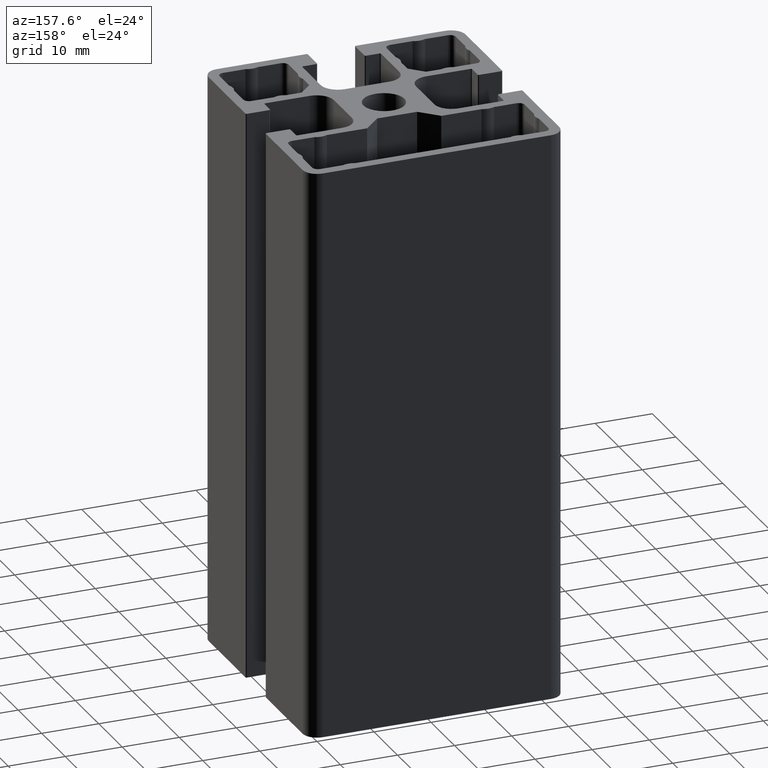
[diagram: clean part render]
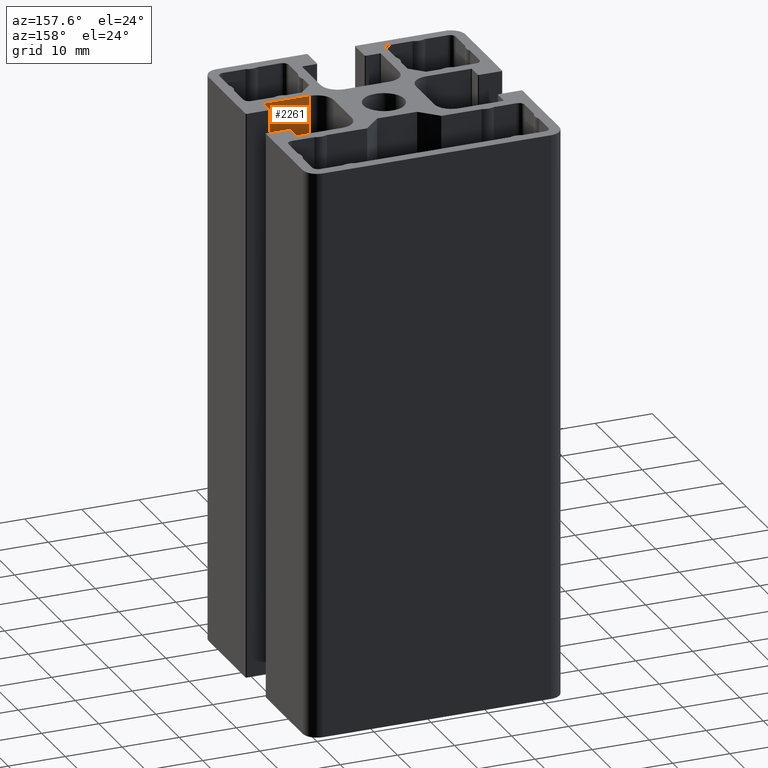
[diagram: same view with one face highlighted and labeled with its STEP entity id]
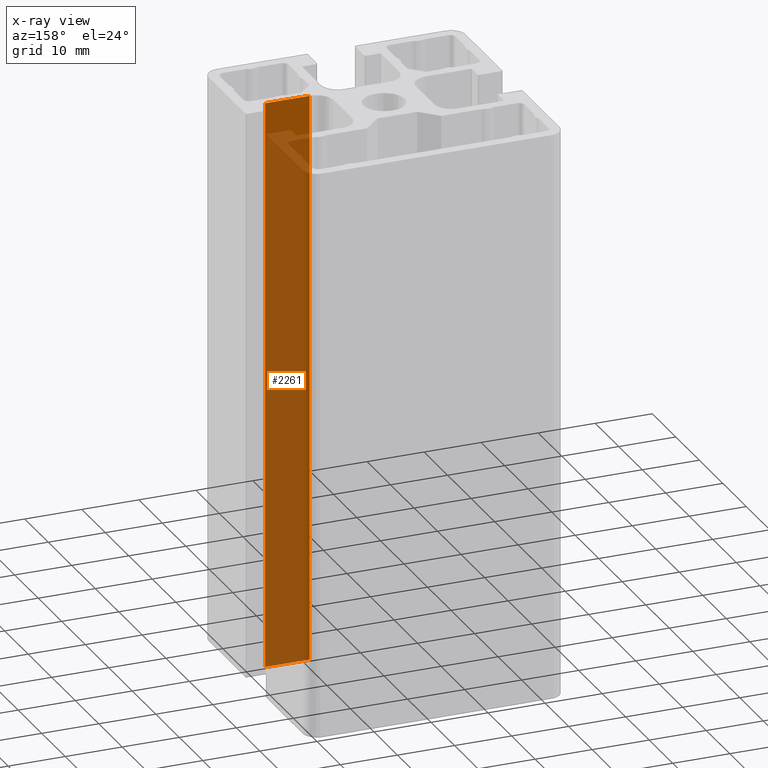
[diagram: x-ray of the same camera — body ghosted, the highlighted face saturated]
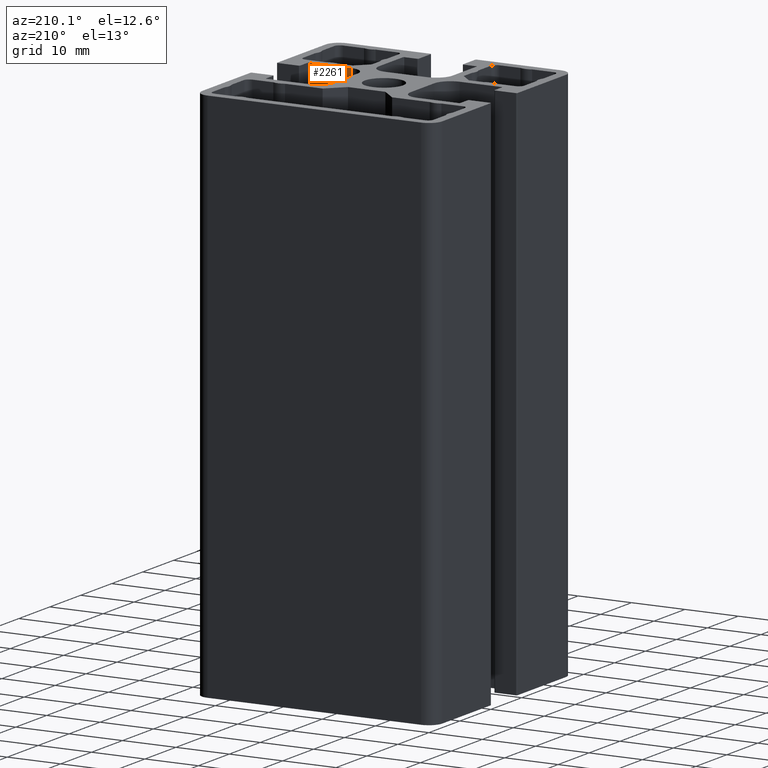
[diagram: same view with one face highlighted and labeled with its STEP entity id]
A machine part, auxiliary view. The second image highlights one B-rep face of the part: STEP entity #2261.
The next image is the same camera in x-ray: the body ghosted, the highlighted face saturated — about 92% of this face is hidden behind the body in this view.
A second angle (auxiliary view) of the same face is appended — the face is thin or edge-on in the first view.
In plain terms, the highlighted planar face has unit normal (0, -1, 0).
Its self-contained STEP definition (entity closure, byte-faithful):
#256=FACE_OUTER_BOUND('',#371,.T.);
#371=EDGE_LOOP('',(#1742,#1743,#1744,#1745));
#576=LINE('',#3645,#808);
#577=LINE('',#3649,#809);
#578=LINE('',#3651,#810);
#579=LINE('',#3652,#811);
#808=VECTOR('',#2958,100.);
#809=VECTOR('',#2963,7.8);
#810=VECTOR('',#2964,100.);
#811=VECTOR('',#2965,7.8);
#1034=VERTEX_POINT('',#3642);
#1035=VERTEX_POINT('',#3644);
#1036=VERTEX_POINT('',#3648);
#1037=VERTEX_POINT('',#3650);
#1331=EDGE_CURVE('',#1035,#1034,#576,.T.);
#1333=EDGE_CURVE('',#1036,#1034,#577,.T.);
#1334=EDGE_CURVE('',#1037,#1036,#578,.T.);
#1335=EDGE_CURVE('',#1035,#1037,#579,.T.);
#1742=ORIENTED_EDGE('',*,*,#1333,.F.);
#1743=ORIENTED_EDGE('',*,*,#1334,.F.);
#1744=ORIENTED_EDGE('',*,*,#1335,.F.);
#1745=ORIENTED_EDGE('',*,*,#1331,.T.);
#2166=PLANE('',#2444);
#2261=ADVANCED_FACE('',(#256),#2166,.F.);
#2444=AXIS2_PLACEMENT_3D('',#3647,#2961,#2962);
#2958=DIRECTION('',(0.,0.,1.));
#2961=DIRECTION('center_axis',(0.,-1.,0.));
#2962=DIRECTION('ref_axis',(1.,0.,0.));
#2963=DIRECTION('',(-1.,0.,0.));
#2964=DIRECTION('',(0.,0.,1.));
#2965=DIRECTION('',(1.,0.,0.));
#3642=CARTESIAN_POINT('',(10.2,-6.9,100.));
#3644=CARTESIAN_POINT('',(10.2,-6.9,0.));
#3645=CARTESIAN_POINT('',(10.2,-6.9,0.));
#3647=CARTESIAN_POINT('Origin',(10.2,-6.9,0.));
#3648=CARTESIAN_POINT('',(18.,-6.9,100.));
#3649=CARTESIAN_POINT('',(5.1,-6.9,100.));
#3650=CARTESIAN_POINT('',(18.,-6.9,0.));
#3651=CARTESIAN_POINT('',(18.,-6.9,0.));
#3652=CARTESIAN_POINT('',(5.1,-6.9,0.));